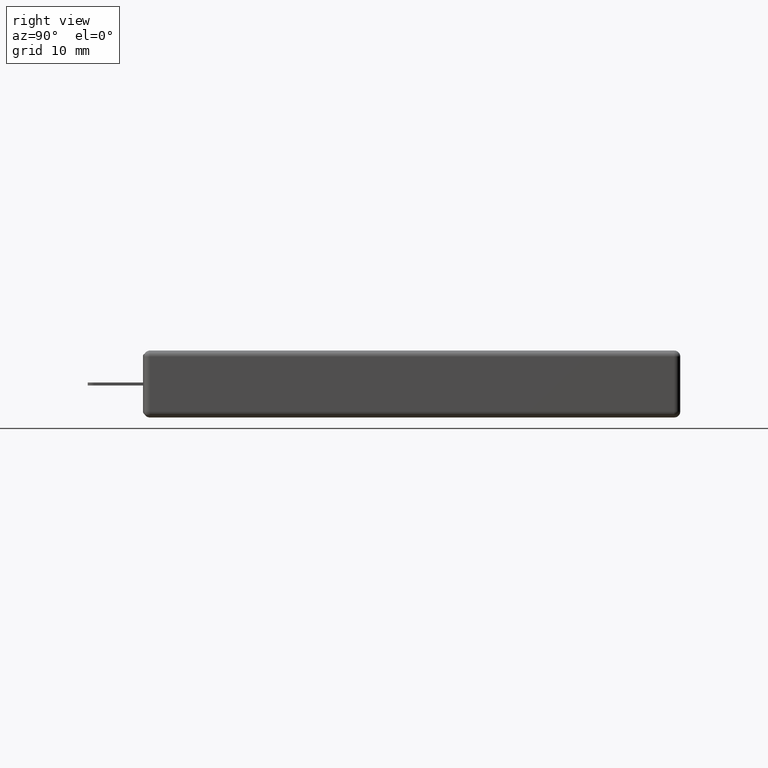
[diagram: clean part render]
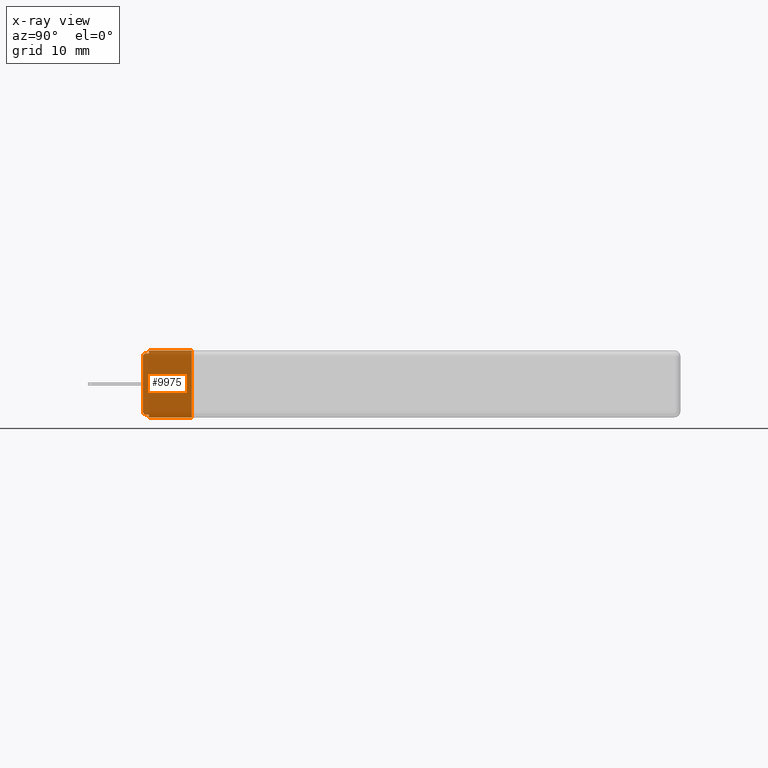
[diagram: x-ray — body ghosted, one internal face saturated and labeled with its STEP entity id]
A machine part, right view, then the same camera in x-ray: the body is ghosted and one INTERNAL B-rep face — a face not visible from any outside direction — is saturated and labeled: STEP entity #9975.
In plain terms, the highlighted planar face has unit normal (1, 0, 0).
Its self-contained STEP definition (entity closure, byte-faithful):
#218 = VECTOR ( 'NONE', #7251, 39.37007874015748100 ) ;
#275 = CARTESIAN_POINT ( 'NONE',  ( 0.0000000000000000000, 0.03100000000000000000, -0.3430000000000000300 ) ) ;
#297 = FACE_OUTER_BOUND ( 'NONE', #11246, .T. ) ;
#619 = EDGE_CURVE ( 'NONE', #6803, #9261, #11497, .T. ) ;
#803 = DIRECTION ( 'NONE',  ( 0.0000000000000000000, 0.0000000000000000000, -1.000000000000000000 ) ) ;
#826 = CARTESIAN_POINT ( 'NONE',  ( 0.0000000000000000000, 0.4600000000000000200, -0.3430000000000000300 ) ) ;
#1190 = DIRECTION ( 'NONE',  ( -0.0000000000000000000, -1.000000000000000000, -0.0000000000000000000 ) ) ;
#1588 = AXIS2_PLACEMENT_3D ( 'NONE', #12721, #9496, #3028 ) ;
#1728 = DIRECTION ( 'NONE',  ( 1.000000000000000000, -0.0000000000000000000, 0.0000000000000000000 ) ) ;
#1796 = EDGE_CURVE ( 'NONE', #6664, #2945, #10439, .T. ) ;
#1810 = CARTESIAN_POINT ( 'NONE',  ( 0.0000000000000000000, 0.03100000000000000000, 0.0000000000000000000 ) ) ;
#2945 = VERTEX_POINT ( 'NONE', #275 ) ;
#3028 = DIRECTION ( 'NONE',  ( 0.0000000000000000000, 8.537024980200820800E-016, -1.000000000000000000 ) ) ;
#3062 = VECTOR ( 'NONE', #11987, 39.37007874015748100 ) ;
#3162 = VERTEX_POINT ( 'NONE', #3559 ) ;
#3259 = AXIS2_PLACEMENT_3D ( 'NONE', #9211, #1728, #13623 ) ;
#3342 = VECTOR ( 'NONE', #9455, 39.37007874015748100 ) ;
#3559 = CARTESIAN_POINT ( 'NONE',  ( 0.0000000000000000000, 0.0000000000000000000, -0.02999999999999995400 ) ) ;
#3753 = LINE ( 'NONE', #1810, #218 ) ;
#4149 = VERTEX_POINT ( 'NONE', #5519 ) ;
#4327 = DIRECTION ( 'NONE',  ( -0.0000000000000000000, -0.0000000000000000000, 1.000000000000000000 ) ) ;
#4582 = EDGE_CURVE ( 'NONE', #3162, #12789, #10923, .T. ) ;
#4839 = VERTEX_POINT ( 'NONE', #8908 ) ;
#5267 = ORIENTED_EDGE ( 'NONE', *, *, #12722, .T. ) ;
#5317 = ORIENTED_EDGE ( 'NONE', *, *, #12712, .F. ) ;
#5519 = CARTESIAN_POINT ( 'NONE',  ( 0.0000000000000000000, 0.03100000000000000000, -0.01499999999999997700 ) ) ;
#5599 = ORIENTED_EDGE ( 'NONE', *, *, #619, .F. ) ;
#5725 = CARTESIAN_POINT ( 'NONE',  ( 0.0000000000000000000, 0.0000000000000000000, -0.3280000000000000100 ) ) ;
#5818 = ORIENTED_EDGE ( 'NONE', *, *, #13718, .T. ) ;
#5964 = ORIENTED_EDGE ( 'NONE', *, *, #7945, .F. ) ;
#6134 = ORIENTED_EDGE ( 'NONE', *, *, #4582, .T. ) ;
#6142 = ORIENTED_EDGE ( 'NONE', *, *, #1796, .T. ) ;
#6212 = DIRECTION ( 'NONE',  ( -1.000000000000000000, 0.0000000000000000000, -0.0000000000000000000 ) ) ;
#6236 = VECTOR ( 'NONE', #12809, 39.37007874015748100 ) ;
#6346 = ORIENTED_EDGE ( 'NONE', *, *, #13237, .F. ) ;
#6383 = DIRECTION ( 'NONE',  ( -0.0000000000000000000, -1.000000000000000000, -0.0000000000000000000 ) ) ;
#6664 = VERTEX_POINT ( 'NONE', #10846 ) ;
#6803 = VERTEX_POINT ( 'NONE', #10038 ) ;
#7030 = EDGE_CURVE ( 'NONE', #8531, #4149, #3753, .T. ) ;
#7251 = DIRECTION ( 'NONE',  ( 0.0000000000000000000, 0.0000000000000000000, -1.000000000000000000 ) ) ;
#7933 = CARTESIAN_POINT ( 'NONE',  ( 0.0000000000000000000, 0.03100000000000000000, -0.3280000000000000100 ) ) ;
#7945 = EDGE_CURVE ( 'NONE', #9261, #2945, #8286, .T. ) ;
#7969 = VECTOR ( 'NONE', #4327, 39.37007874015748100 ) ;
#8286 = LINE ( 'NONE', #13179, #3062 ) ;
#8313 = CARTESIAN_POINT ( 'NONE',  ( 0.0000000000000000000, 0.01499999999999999900, -0.3130000000000000600 ) ) ;
#8531 = VERTEX_POINT ( 'NONE', #8850 ) ;
#8850 = CARTESIAN_POINT ( 'NONE',  ( 0.0000000000000000000, 0.03100000000000000000, 0.0000000000000000000 ) ) ;
#8908 = CARTESIAN_POINT ( 'NONE',  ( 0.0000000000000000000, 0.2500000000000000600, 0.0000000000000000000 ) ) ;
#9037 = DIRECTION ( 'NONE',  ( 0.0000000000000000000, 1.000000000000000000, 0.0000000000000000000 ) ) ;
#9211 = CARTESIAN_POINT ( 'NONE',  ( 0.0000000000000000000, 0.4600000000000000200, 0.0000000000000000000 ) ) ;
#9261 = VERTEX_POINT ( 'NONE', #7933 ) ;
#9273 = PLANE ( 'NONE',  #3259 ) ;
#9329 = LINE ( 'NONE', #11846, #6236 ) ;
#9455 = DIRECTION ( 'NONE',  ( -0.0000000000000000000, -1.000000000000000000, -0.0000000000000000000 ) ) ;
#9496 = DIRECTION ( 'NONE',  ( -1.000000000000000000, 0.0000000000000000000, -0.0000000000000000000 ) ) ;
#9912 = ORIENTED_EDGE ( 'NONE', *, *, #11512, .F. ) ;
#9975 = ADVANCED_FACE ( 'NONE', ( #297 ), #9273, .F. ) ;
#10038 = CARTESIAN_POINT ( 'NONE',  ( 0.0000000000000000000, 0.01499999999999999900, -0.3280000000000000100 ) ) ;
#10166 = ORIENTED_EDGE ( 'NONE', *, *, #7030, .F. ) ;
#10439 = LINE ( 'NONE', #826, #3342 ) ;
#10846 = CARTESIAN_POINT ( 'NONE',  ( 0.0000000000000000000, 0.2500000000000000600, -0.3430000000000000300 ) ) ;
#10923 = CIRCLE ( 'NONE', #1588, 0.01500000000000000300 ) ;
#11144 = CARTESIAN_POINT ( 'NONE',  ( 0.0000000000000000000, 0.01499999999999999900, -0.01499999999999997700 ) ) ;
#11246 = EDGE_LOOP ( 'NONE', ( #5317, #6346, #6142, #5964, #5599, #5818, #5267, #6134, #9912, #10166 ) ) ;
#11339 = AXIS2_PLACEMENT_3D ( 'NONE', #8313, #6212, #803 ) ;
#11497 = LINE ( 'NONE', #5725, #12861 ) ;
#11512 = EDGE_CURVE ( 'NONE', #4149, #12789, #13613, .T. ) ;
#11550 = VECTOR ( 'NONE', #6383, 39.37007874015748100 ) ;
#11846 = CARTESIAN_POINT ( 'NONE',  ( 0.0000000000000000000, 0.2500000000000000600, 0.0000000000000000000 ) ) ;
#11960 = CARTESIAN_POINT ( 'NONE',  ( 0.0000000000000000000, 0.0000000000000000000, 0.0000000000000000000 ) ) ;
#11987 = DIRECTION ( 'NONE',  ( -0.0000000000000000000, -0.0000000000000000000, -1.000000000000000000 ) ) ;
#12192 = CARTESIAN_POINT ( 'NONE',  ( 0.0000000000000000000, 0.0000000000000000000, -0.3130000000000000600 ) ) ;
#12228 = LINE ( 'NONE', #11960, #7969 ) ;
#12431 = VECTOR ( 'NONE', #1190, 39.37007874015748100 ) ;
#12712 = EDGE_CURVE ( 'NONE', #4839, #8531, #13421, .T. ) ;
#12721 = CARTESIAN_POINT ( 'NONE',  ( 0.0000000000000000000, 0.01499999999999999900, -0.02999999999999995400 ) ) ;
#12722 = EDGE_CURVE ( 'NONE', #12863, #3162, #12228, .T. ) ;
#12789 = VERTEX_POINT ( 'NONE', #11144 ) ;
#12809 = DIRECTION ( 'NONE',  ( -0.0000000000000000000, -0.0000000000000000000, 1.000000000000000000 ) ) ;
#12861 = VECTOR ( 'NONE', #9037, 39.37007874015748100 ) ;
#12863 = VERTEX_POINT ( 'NONE', #12192 ) ;
#12900 = CARTESIAN_POINT ( 'NONE',  ( 0.0000000000000000000, 0.4600000000000000200, 0.0000000000000000000 ) ) ;
#13074 = CARTESIAN_POINT ( 'NONE',  ( 0.0000000000000000000, 0.0000000000000000000, -0.01499999999999997700 ) ) ;
#13179 = CARTESIAN_POINT ( 'NONE',  ( 0.0000000000000000000, 0.03100000000000000000, -0.3430000000000000300 ) ) ;
#13237 = EDGE_CURVE ( 'NONE', #6664, #4839, #9329, .T. ) ;
#13388 = CIRCLE ( 'NONE', #11339, 0.01499999999999997700 ) ;
#13421 = LINE ( 'NONE', #12900, #11550 ) ;
#13613 = LINE ( 'NONE', #13074, #12431 ) ;
#13623 = DIRECTION ( 'NONE',  ( 0.0000000000000000000, 0.0000000000000000000, -1.000000000000000000 ) ) ;
#13718 = EDGE_CURVE ( 'NONE', #6803, #12863, #13388, .T. ) ;